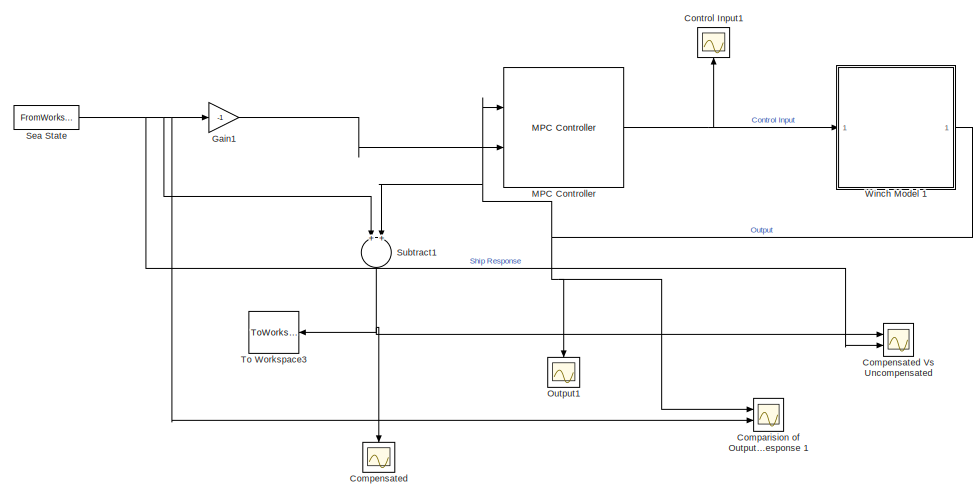
[diagram: root canvas - part 1/5, top right region]
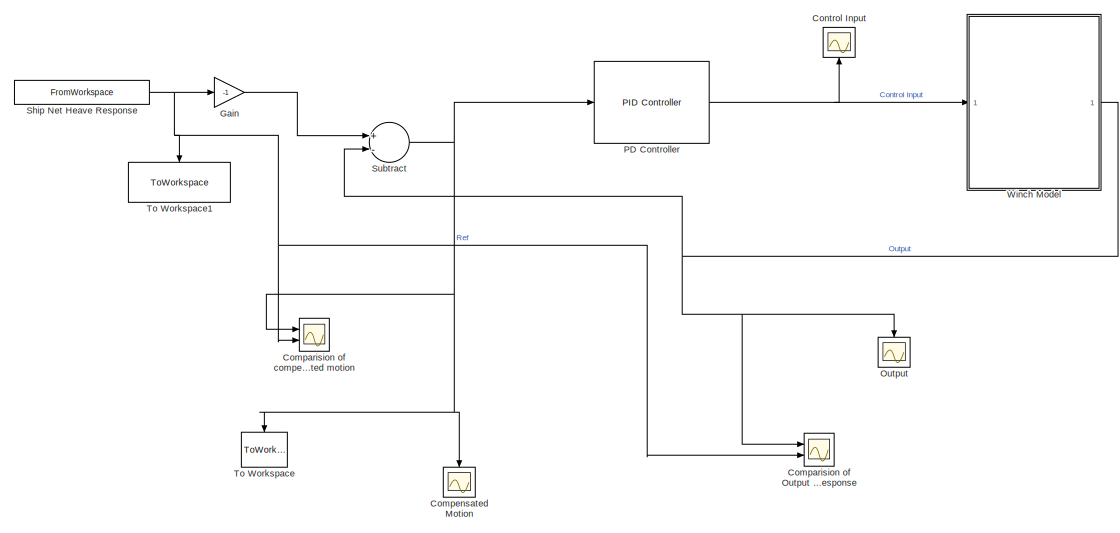
[diagram: root canvas - part 2/5, top left region]
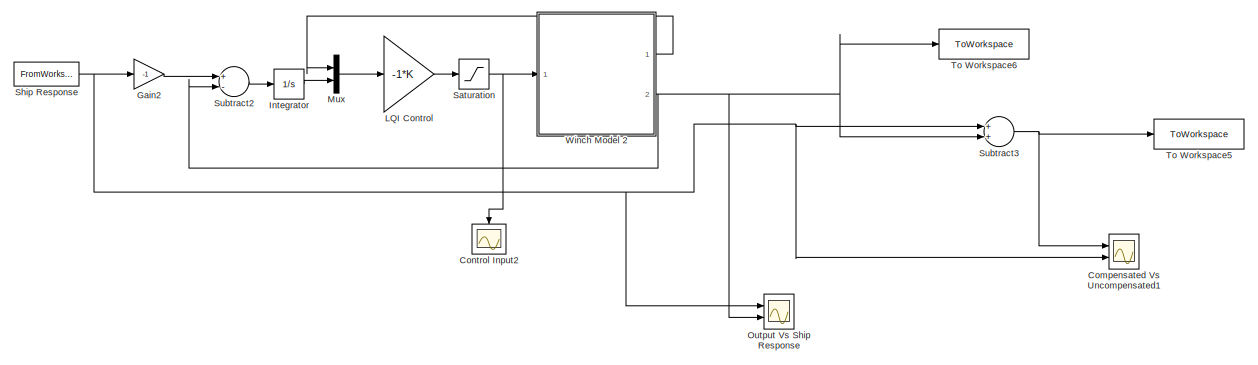
[diagram: root canvas - part 3/5, middle left region]
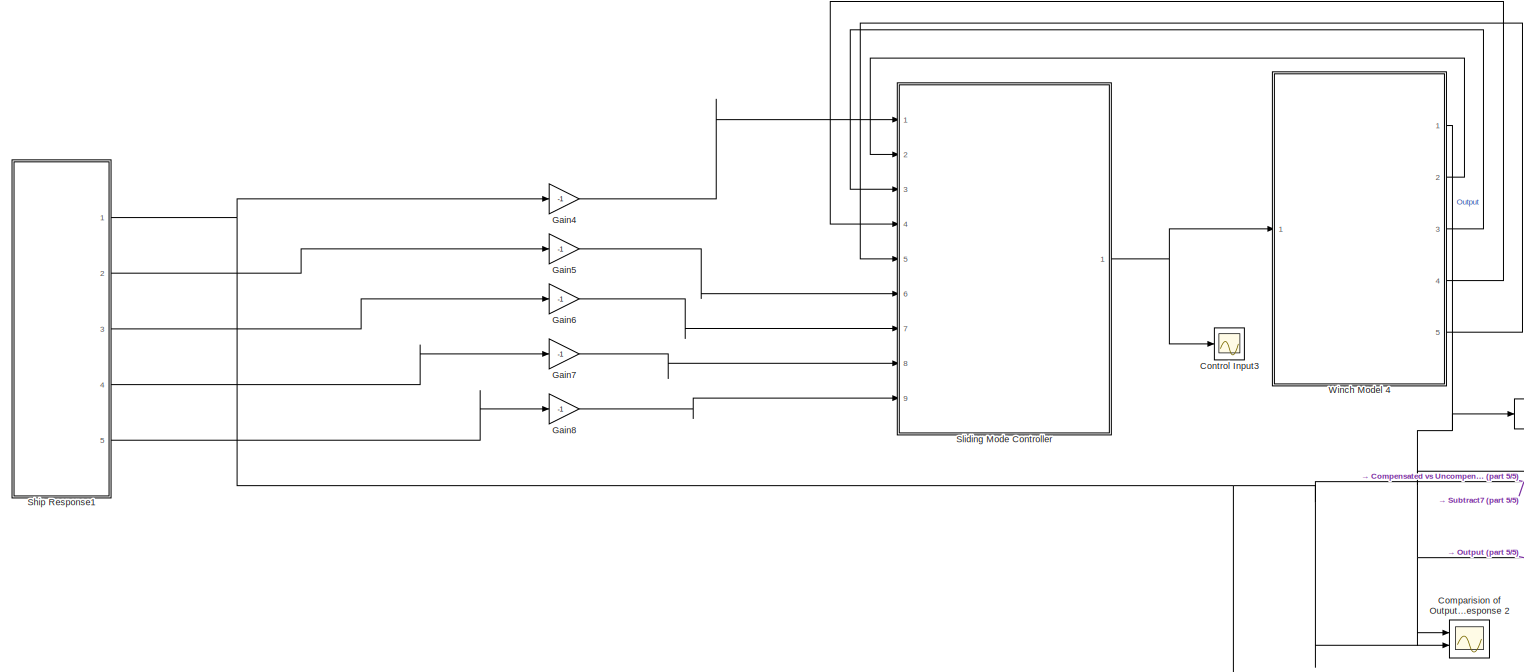
[diagram: root canvas - part 4/5, bottom left region]
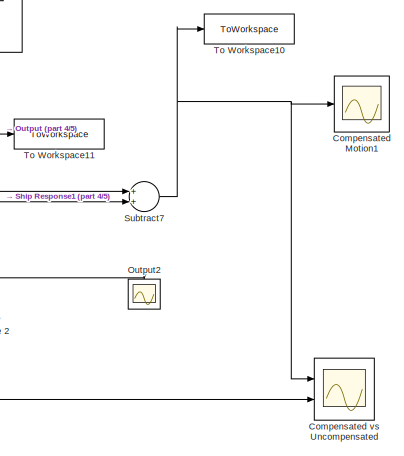
[diagram: root canvas - part 5/5, bottom right region]
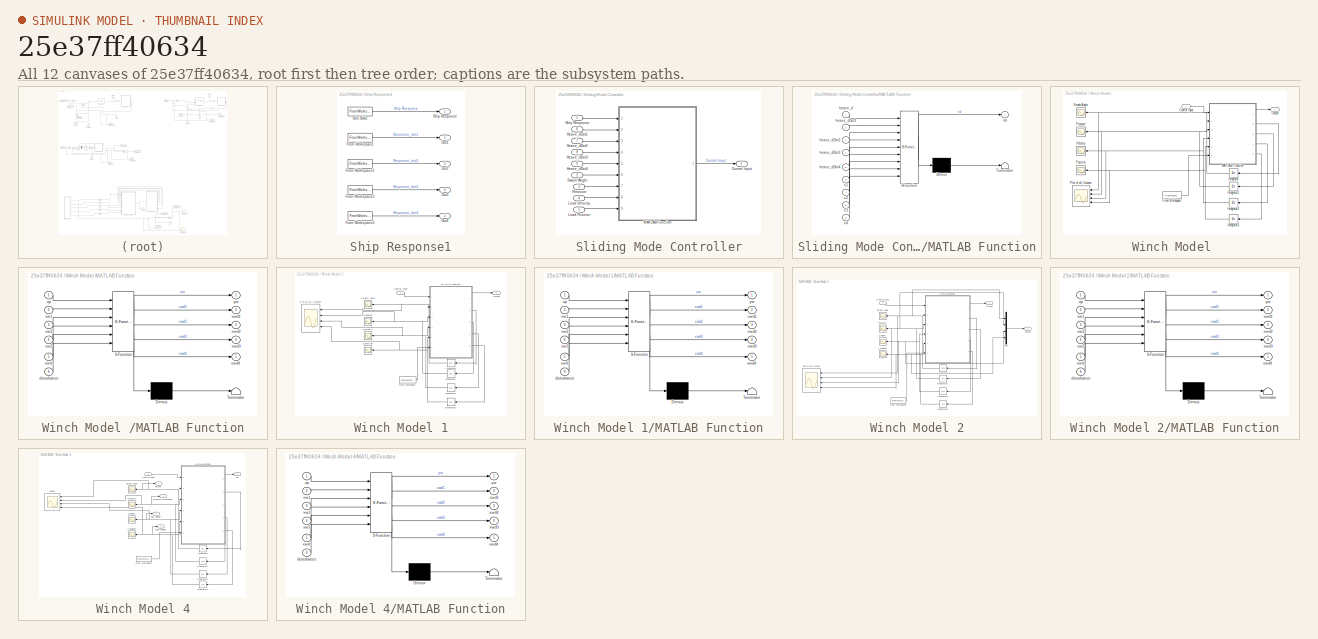
[diagram: thumbnail index - all 12 canvases of the model, root first then tree order]
MODEL slx_25e37ff40634
KIND model
CONFIG AbsTol = auto
CONFIG FixedStep = auto
CONFIG MaxStep = auto
CONFIG MinStep = auto
CONFIG RelTol = 1e-3
CONFIG SampleTimeConstraint = Unconstrained
CONFIG Solver = VariableStepAuto
CONFIG SolverMode = SingleTasking
CONFIG SolverName = VariableStepAuto
CONFIG StartTime = 0.0
CONFIG StopTime = 500
BLOCK [Scope] Comparision of Output and Ship Response 
  Floating = off
  NumInputPorts = 2
  Ports = [2]
  ScopeSpecificationString = Simulink.scopes.TimeScopeBlockCfg('CurrentConfiguration', extmgr.ConfigurationSet(extmgr.Configuration('Core','General UI',true,'FigureColor',[1 1 1]),extmgr.Configuration('Core','Source UI',true),extmgr.Configuration('Sources','WiredSimulink',true,'DataLoggingVariableName','ScopeData1'),extmgr.Configuration('Visuals','Time Domain',true,'SerializedDisplays',{struct('MinYLimReal','-2.31661','MaxYLi...<+1690ch>
BLOCK [Scope] Comparision of Output and Ship Response 1
  Floating = off
  NumInputPorts = 2
  Ports = [2]
  ScopeSpecificationString = Simulink.scopes.TimeScopeBlockCfg('CurrentConfiguration', extmgr.ConfigurationSet(extmgr.Configuration('Core','General UI',true,'FigureColor',[1 1 1]),extmgr.Configuration('Core','Source UI',true),extmgr.Configuration('Sources','WiredSimulink',true,'DataLoggingVariableName','ScopeData2'),extmgr.Configuration('Visuals','Time Domain',true,'SerializedDisplays',{struct('MinYLimReal','-2.42221','MaxYLi...<+1700ch>
BLOCK [Scope] Comparision of Output and Ship Response 2
  Floating = off
  NumInputPorts = 2
  Ports = [2]
  ScopeSpecificationString = Simulink.scopes.TimeScopeBlockCfg('CurrentConfiguration', extmgr.ConfigurationSet(extmgr.Configuration('Core','General UI',true,'FigureColor',[0 0 0]),extmgr.Configuration('Core','Source UI',true),extmgr.Configuration('Sources','WiredSimulink',true,'DataLoggingVariableName','ScopeData3'),extmgr.Configuration('Visuals','Time Domain',true,'SerializedDisplays',{struct('MinYLimReal','-3.25017','MaxYLi...<+1442ch>
BLOCK [Scope] Comparision of compensated and uncompensated motion
  Floating = off
  NumInputPorts = 2
  Ports = [2]
  ScopeSpecificationString = Simulink.scopes.TimeScopeBlockCfg('CurrentConfiguration', extmgr.ConfigurationSet(extmgr.Configuration('Core','General UI',true,'FigureColor',[1 1 1]),extmgr.Configuration('Core','Source UI',true),extmgr.Configuration('Sources','WiredSimulink',true,'DataLoggingVariableName','ScopeData4'),extmgr.Configuration('Visuals','Time Domain',true,'SerializedDisplays',{struct('MinYLimReal','-0.07424','MaxYLi...<+1643ch>
BLOCK [Scope] Compensated
  Floating = off
  NumInputPorts = 1
  Ports = [1]
  ScopeSpecificationString = Simulink.scopes.TimeScopeBlockCfg('CurrentConfiguration', extmgr.ConfigurationSet(extmgr.Configuration('Core','General UI',true,'FigureColor',[1 1 1]),extmgr.Configuration('Core','Source UI',true),extmgr.Configuration('Sources','WiredSimulink',true,'DataLoggingVariableName','ScopeData5'),extmgr.Configuration('Visuals','Time Domain',true,'SerializedDisplays',{struct('MinYLimReal','-1.35627','MaxYLi...<+1596ch>
BLOCK [Scope] Compensated Motion
  Floating = off
  NumInputPorts = 1
  Ports = [1]
  ScopeSpecificationString = Simulink.scopes.TimeScopeBlockCfg('CurrentConfiguration', extmgr.ConfigurationSet(extmgr.Configuration('Core','General UI',true,'FigureColor',[1 1 1]),extmgr.Configuration('Core','Source UI',true),extmgr.Configuration('Sources','WiredSimulink',true,'DataLoggingVariableName','ScopeData6'),extmgr.Configuration('Visuals','Time Domain',true,'SerializedDisplays',{struct('MinYLimReal','-0.12572','MaxYLi...<+1554ch>
BLOCK [Scope] Compensated Motion1
  Floating = off
  NumInputPorts = 1
  Ports = [1]
  ScopeSpecificationString = Simulink.scopes.TimeScopeBlockCfg('CurrentConfiguration', extmgr.ConfigurationSet(extmgr.Configuration('Core','General UI',true),extmgr.Configuration('Core','Source UI',true),extmgr.Configuration('Sources','WiredSimulink',true,'DataLoggingVariableName','ScopeData7'),extmgr.Configuration('Visuals','Time Domain',true,'SerializedDisplays',{struct('MinYLimReal','-0.11196','MaxYLimReal','0.0137','YLabe...<+1393ch>
BLOCK [Scope] Compensated Vs Uncompensated
  Floating = off
  NumInputPorts = 2
  Ports = [2]
  ScopeSpecificationString = Simulink.scopes.TimeScopeBlockCfg('CurrentConfiguration', extmgr.ConfigurationSet(extmgr.Configuration('Core','General UI',true),extmgr.Configuration('Core','Source UI',true),extmgr.Configuration('Sources','WiredSimulink',true,'DataLoggingVariableName','ScopeData8'),extmgr.Configuration('Visuals','Time Domain',true,'SerializedDisplays',{struct('MinYLimReal','-2.6785','MaxYLimReal','2.74564','YLabe...<+1431ch>
BLOCK [Scope] Compensated Vs Uncompensated1
  Floating = off
  NumInputPorts = 2
  Ports = [2]
  ScopeSpecificationString = Simulink.scopes.TimeScopeBlockCfg('CurrentConfiguration', extmgr.ConfigurationSet(extmgr.Configuration('Core','General UI',true),extmgr.Configuration('Core','Source UI',true),extmgr.Configuration('Sources','WiredSimulink',true,'DataLoggingVariableName','ScopeData9'),extmgr.Configuration('Visuals','Time Domain',true,'SerializedDisplays',{struct('MinYLimReal','-2.67788','MaxYLimReal','2.74559','YLab...<+1411ch>
BLOCK [Scope] Compensated vs Uncompensated 
  Floating = off
  NumInputPorts = 2
  Ports = [2]
  ScopeSpecificationString = Simulink.scopes.TimeScopeBlockCfg('CurrentConfiguration', extmgr.ConfigurationSet(extmgr.Configuration('Core','General UI',true),extmgr.Configuration('Core','Source UI',true),extmgr.Configuration('Sources','WiredSimulink',true,'DataLoggingVariableName','ScopeData10'),extmgr.Configuration('Visuals','Time Domain',true,'SerializedDisplays',{struct('MinYLimReal','-2.67855','MaxYLimReal','2.74574','YLa...<+1425ch>
BLOCK [Scope] Control Input
  Floating = off
  NumInputPorts = 1
  Ports = [1]
  ScopeSpecificationString = Simulink.scopes.TimeScopeBlockCfg('CurrentConfiguration', extmgr.ConfigurationSet(extmgr.Configuration('Core','General UI',true,'FigureColor',[1 1 1]),extmgr.Configuration('Core','Source UI',true),extmgr.Configuration('Sources','WiredSimulink',true,'DataLoggingVariableName','ScopeData11'),extmgr.Configuration('Visuals','Time Domain',true,'SerializedDisplays',{struct('MinYLimReal','-45.84513','MaxY...<+1612ch>
BLOCK [Scope] Control Input1
  Floating = off
  NumInputPorts = 1
  Ports = [1]
  ScopeSpecificationString = Simulink.scopes.TimeScopeBlockCfg('CurrentConfiguration', extmgr.ConfigurationSet(extmgr.Configuration('Core','General UI',true,'FigureColor',[1 1 1]),extmgr.Configuration('Core','Source UI',true),extmgr.Configuration('Sources','WiredSimulink',true,'DataLoggingVariableName','ScopeData12'),extmgr.Configuration('Visuals','Time Domain',true,'SerializedDisplays',{struct('MinYLimReal','-100','MaxYLimRe...<+1569ch>
BLOCK [Scope] Control Input2
  Floating = off
  NumInputPorts = 1
  Ports = [1]
  ScopeSpecificationString = Simulink.scopes.TimeScopeBlockCfg('CurrentConfiguration', extmgr.ConfigurationSet(extmgr.Configuration('Core','General UI',true),extmgr.Configuration('Core','Source UI',true),extmgr.Configuration('Sources','WiredSimulink',true,'DataLoggingVariableName','ScopeData13'),extmgr.Configuration('Visuals','Time Domain',true,'SerializedDisplays',{struct('MinYLimReal','-219.84521','MaxYLimReal','340.60567',...<+1412ch>
BLOCK [Scope] Control Input3
  Floating = off
  NumInputPorts = 1
  Ports = [1]
  ScopeSpecificationString = Simulink.scopes.TimeScopeBlockCfg('CurrentConfiguration', extmgr.ConfigurationSet(extmgr.Configuration('Core','General UI',true),extmgr.Configuration('Core','Source UI',true),extmgr.Configuration('Sources','WiredSimulink',true,'DataLoggingVariableName','ScopeData14'),extmgr.Configuration('Visuals','Time Domain',true,'SerializedDisplays',{struct('MinYLimReal','-250','MaxYLimReal','250','YLabelReal'...<+1422ch>
BLOCK [Gain] Gain
  Gain = -1
  OutDataTypeStr = Inherit: Inherit via internal rule
  ParamDataTypeStr = Inherit: Inherit via internal rule
  SaturateOnIntegerOverflow = off
BLOCK [Gain] Gain1
  Gain = -1
  OutDataTypeStr = Inherit: Inherit via internal rule
  ParamDataTypeStr = Inherit: Inherit via internal rule
  SaturateOnIntegerOverflow = off
BLOCK [Gain] Gain2
  Gain = -1
  OutDataTypeStr = Inherit: Inherit via internal rule
  ParamDataTypeStr = Inherit: Inherit via internal rule
  SaturateOnIntegerOverflow = off
BLOCK [Gain] Gain4
  Gain = -1
  OutDataTypeStr = Inherit: Inherit via internal rule
  ParamDataTypeStr = Inherit: Inherit via internal rule
  SaturateOnIntegerOverflow = off
BLOCK [Gain] Gain5
  Gain = -1
  OutDataTypeStr = Inherit: Inherit via internal rule
  ParamDataTypeStr = Inherit: Inherit via internal rule
  SaturateOnIntegerOverflow = off
BLOCK [Gain] Gain6
  Gain = -1
  OutDataTypeStr = Inherit: Inherit via internal rule
  ParamDataTypeStr = Inherit: Inherit via internal rule
  SaturateOnIntegerOverflow = off
BLOCK [Gain] Gain7
  Gain = -1
  OutDataTypeStr = Inherit: Inherit via internal rule
  ParamDataTypeStr = Inherit: Inherit via internal rule
  SaturateOnIntegerOverflow = off
BLOCK [Gain] Gain8
  Gain = -1
  OutDataTypeStr = Inherit: Inherit via internal rule
  ParamDataTypeStr = Inherit: Inherit via internal rule
  SaturateOnIntegerOverflow = off
BLOCK [Integrator] Integrator
  Ports = [1, 1]
BLOCK [Gain] LQI Control
  Gain = -1*K
  Multiplication = Matrix(K*u) (u vector)
  OutDataTypeStr = Inherit: Inherit via internal rule
  ParamDataTypeStr = Inherit: Inherit via internal rule
  SaturateOnIntegerOverflow = off
BLOCK [Reference] MPC Controller  REF=mpclib/MPC Controller  (lib defined in mdl_ae329e0e0455)
  Ports = [2, 1]
  SCDEnableBlockLinearizationSpecification = on
  SourceBlock = mpclib/MPC Controller
  SourceType = MPC
BLOCK [Mux] Mux
  DisplayOption = bar
  Inputs = 2
  Ports = [2, 1]
BLOCK [Scope] Output
  Floating = off
  NumInputPorts = 1
  Ports = [1]
  ScopeSpecificationString = Simulink.scopes.TimeScopeBlockCfg('CurrentConfiguration', extmgr.ConfigurationSet(extmgr.Configuration('Core','General UI',true),extmgr.Configuration('Core','Source UI',true),extmgr.Configuration('Sources','WiredSimulink',true,'DataLoggingVariableName','ScopeData15'),extmgr.Configuration('Visuals','Time Domain',true,'SerializedDisplays',{struct('MinYLimReal','-2.56741','MaxYLimReal','2.65555','YLa...<+1366ch>
BLOCK [Scope] Output Vs Ship Response
  Floating = off
  NumInputPorts = 2
  Ports = [2]
  ScopeSpecificationString = Simulink.scopes.TimeScopeBlockCfg('CurrentConfiguration', extmgr.ConfigurationSet(extmgr.Configuration('Core','General UI',true),extmgr.Configuration('Core','Source UI',true),extmgr.Configuration('Sources','WiredSimulink',true,'DataLoggingVariableName','ScopeData16'),extmgr.Configuration('Visuals','Time Domain',true,'SerializedDisplays',{struct('MinYLimReal','-2.42222','MaxYLimReal','2.42226','YLa...<+1467ch>
BLOCK [Scope] Output1
  Floating = off
  NumInputPorts = 1
  Ports = [1]
  ScopeSpecificationString = Simulink.scopes.TimeScopeBlockCfg('CurrentConfiguration', extmgr.ConfigurationSet(extmgr.Configuration('Core','General UI',true),extmgr.Configuration('Core','Source UI',true),extmgr.Configuration('Sources','WiredSimulink',true,'DataLoggingVariableName','ScopeData17'),extmgr.Configuration('Visuals','Time Domain',true,'SerializedDisplays',{struct('MinYLimReal','-0.22767','MaxYLimReal','0.26687','YLa...<+1366ch>
BLOCK [Scope] Output2
  Floating = off
  NumInputPorts = 1
  Ports = [1]
  ScopeSpecificationString = Simulink.scopes.TimeScopeBlockCfg('CurrentConfiguration', extmgr.ConfigurationSet(extmgr.Configuration('Core','General UI',true),extmgr.Configuration('Core','Source UI',true),extmgr.Configuration('Sources','WiredSimulink',true,'DataLoggingVariableName','ScopeData18'),extmgr.Configuration('Visuals','Time Domain',true,'SerializedDisplays',{struct('MinYLimReal','-1.32195','MaxYLimReal','0.93934','YLa...<+1366ch>
BLOCK [Reference] PD Controller   REF=simulink/Continuous/PID Controller
  Ports = [1, 1]
  SourceBlock = simulink/Continuous/PID Controller
  SourceType = PID 1dof
BLOCK [Saturate] Saturation
  InputPortMap = u0
  LowerLimit = -200
  Ports = [1, 1]
  UpperLimit = 200
BLOCK [FromWorkspace] Sea State
  SampleTime = 0
  VariableName = response1
  ZeroCross = on
BLOCK [FromWorkspace] Ship Net Heave Response
  SampleTime = 0
  VariableName = response1
  ZeroCross = on
BLOCK [FromWorkspace] Ship Response
  SampleTime = 0
  VariableName = response1
  ZeroCross = on
BLOCK [SubSystem] Ship Response1
  Ports = [0, 5]
  RequestExecContextInheritance = off
BLOCK [Outport] Ship Response1/Dot1
  IconDisplay = Port number
  Port = 2
BLOCK [Outport] Ship Response1/Dot2
  IconDisplay = Port number
  Port = 3
BLOCK [Outport] Ship Response1/Dot3
  IconDisplay = Port number
  Port = 4
BLOCK [Outport] Ship Response1/Dot4
  IconDisplay = Port number
  Port = 5
BLOCK [FromWorkspace] Ship Response1/From Workspace
  SampleTime = 0
  VariableName = response_dot1
  ZeroCross = on
BLOCK [FromWorkspace] Ship Response1/From Workspace1
  SampleTime = 0
  VariableName = response_dot2
  ZeroCross = on
BLOCK [FromWorkspace] Ship Response1/From Workspace2
  SampleTime = 0
  VariableName = response_dot3
  ZeroCross = on
BLOCK [FromWorkspace] Ship Response1/From Workspace3
  SampleTime = 0
  VariableName = response_dot4
  ZeroCross = on
BLOCK [FromWorkspace] Ship Response1/Sea State 
  SampleTime = 0
  VariableName = response1
  ZeroCross = on
BLOCK [Outport] Ship Response1/Ship Response
  IconDisplay = Port number
BLOCK [SubSystem] Sliding Mode Controller
  Ports = [9, 1]
  RequestExecContextInheritance = off
BLOCK [Outport] Sliding Mode Controller/Control Input
  IconDisplay = Port number
BLOCK [Inport] Sliding Mode Controller/Heave_dDot1 
  IconDisplay = Port number
  Port = 6
BLOCK [Inport] Sliding Mode Controller/Heave_dDot2
  IconDisplay = Port number
  Port = 7
BLOCK [Inport] Sliding Mode Controller/Heave_dDot3
  IconDisplay = Port number
  Port = 8
BLOCK [Inport] Sliding Mode Controller/Heave_dDot4
  IconDisplay = Port number
  Port = 9
BLOCK [Inport] Sliding Mode Controller/Load Position
  IconDisplay = Port number
  Port = 5
BLOCK [Inport] Sliding Mode Controller/Load Velocity
  IconDisplay = Port number
  Port = 4
BLOCK [SubSystem] Sliding Mode Controller/MATLAB Function
  ErrorFcn = Stateflow.Translate.translate
  PermitHierarchicalResolution = ExplicitOnly
  Ports = [9, 1]
  RequestExecContextInheritance = off
  SFBlockType = MATLAB Function
  TreatAsAtomicUnit = on
BLOCK [Demux] Sliding Mode Controller/MATLAB Function/ Demux 
  Outputs = 1
  Ports = [1, 1]
BLOCK [S-Function] Sliding Mode Controller/MATLAB Function/ SFunction 
  EnableBusSupport = on
  FunctionName = sf_sfun
  PortCounts = [9 2]
  Ports = [9, 2]
  SFunctionDeploymentMode = off
  Tag = Stateflow S-Function Winch_All_Controllers_with_d 5
BLOCK [Terminator] Sliding Mode Controller/MATLAB Function/ Terminator 
BLOCK [Inport] Sliding Mode Controller/MATLAB Function/heave_d
  IconDisplay = Port number
BLOCK [Inport] Sliding Mode Controller/MATLAB Function/heave_dDot1
  IconDisplay = Port number
  Port = 2
BLOCK [Inport] Sliding Mode Controller/MATLAB Function/heave_dDot2
  IconDisplay = Port number
  Port = 3
BLOCK [Inport] Sliding Mode Controller/MATLAB Function/heave_dDot3
  IconDisplay = Port number
  Port = 4
BLOCK [Inport] Sliding Mode Controller/MATLAB Function/heave_dDot4
  IconDisplay = Port number
  Port = 5
BLOCK [Outport] Sliding Mode Controller/MATLAB Function/up
  IconDisplay = Port number
BLOCK [Inport] Sliding Mode Controller/MATLAB Function/x1
  IconDisplay = Port number
  Port = 6
BLOCK [Inport] Sliding Mode Controller/MATLAB Function/x2
  IconDisplay = Port number
  Port = 7
BLOCK [Inport] Sliding Mode Controller/MATLAB Function/x3
  IconDisplay = Port number
  Port = 8
BLOCK [Inport] Sliding Mode Controller/MATLAB Function/x4
  IconDisplay = Port number
  Port = 9
BLOCK [Inport] Sliding Mode Controller/Pressure
  IconDisplay = Port number
  Port = 3
BLOCK [Inport] Sliding Mode Controller/Ship Response
  IconDisplay = Port number
BLOCK [Inport] Sliding Mode Controller/Swash Angle
  IconDisplay = Port number
  Port = 2
BLOCK [Sum] Subtract
  InputSameDT = off
  Inputs = +-
  OutDataTypeStr = Inherit: Inherit via internal rule
  Ports = [2, 1]
  SaturateOnIntegerOverflow = off
BLOCK [Sum] Subtract1
  InputSameDT = off
  OutDataTypeStr = Inherit: Inherit via internal rule
  Ports = [2, 1]
  SaturateOnIntegerOverflow = off
BLOCK [Sum] Subtract2
  InputSameDT = off
  Inputs = +-
  OutDataTypeStr = Inherit: Inherit via internal rule
  Ports = [2, 1]
  SaturateOnIntegerOverflow = off
BLOCK [Sum] Subtract3
  InputSameDT = off
  OutDataTypeStr = Inherit: Inherit via internal rule
  Ports = [2, 1]
  SaturateOnIntegerOverflow = off
BLOCK [Sum] Subtract7
  InputSameDT = off
  OutDataTypeStr = Inherit: Inherit via internal rule
  Ports = [2, 1]
  SaturateOnIntegerOverflow = off
BLOCK [ToWorkspace] To Workspace
  FixptAsFi = on
  MaxDataPoints = inf
  Ports = [1]
  SampleTime = -1
  VariableName = error_pd
BLOCK [ToWorkspace] To Workspace1
  FixptAsFi = on
  MaxDataPoints = inf
  Ports = [1]
  SampleTime = -1
  VariableName = shipresponse
BLOCK [ToWorkspace] To Workspace10
  FixptAsFi = on
  MaxDataPoints = inf
  Ports = [1]
  SampleTime = -1
  VariableName = error_smc
BLOCK [ToWorkspace] To Workspace11
  FixptAsFi = on
  MaxDataPoints = inf
  Ports = [1]
  SampleTime = -1
  VariableName = output1
BLOCK [ToWorkspace] To Workspace3
  MaxDataPoints = inf
  Ports = [1]
  SampleTime = -1
  Save2DSignal = 2-D array (concatenate along first dimension)
  VariableName = error_mpc
BLOCK [ToWorkspace] To Workspace5
  FixptAsFi = on
  MaxDataPoints = inf
  Ports = [1]
  SampleTime = -1
  VariableName = error_lqi
BLOCK [ToWorkspace] To Workspace6
  FixptAsFi = on
  MaxDataPoints = inf
  Ports = [1]
  SampleTime = -1
  VariableName = output
BLOCK [SubSystem] Winch Model 
  Ports = [1, 1]
  RequestExecContextInheritance = off
BLOCK [Inport] Winch Model /Control Input
  IconDisplay = Port number
BLOCK [FromWorkspace] Winch Model /From Workspace
  SampleTime = 0
  VariableName = disturbance1
  ZeroCross = on
BLOCK [Integrator] Winch Model /Integrator
  ContinuousStateAttributes = 'Swash'
  InitialCondition = 0.4
  LimitOutput = on
  LowerSaturationLimit = -1
  Ports = [1, 1]
  UpperSaturationLimit = 1
BLOCK [Integrator] Winch Model /Integrator1
  ContinuousStateAttributes = 'Pressure'
  InitialCondition = 188e5
  LowerSaturationLimit = -4e7
  Ports = [1, 1]
  UpperSaturationLimit = 4e7
BLOCK [Integrator] Winch Model /Integrator2
  ContinuousStateAttributes = 'Velocity'
  Ports = [1, 1]
BLOCK [Integrator] Winch Model /Integrator3
  ContinuousStateAttributes = 'Position'
  Ports = [1, 1]
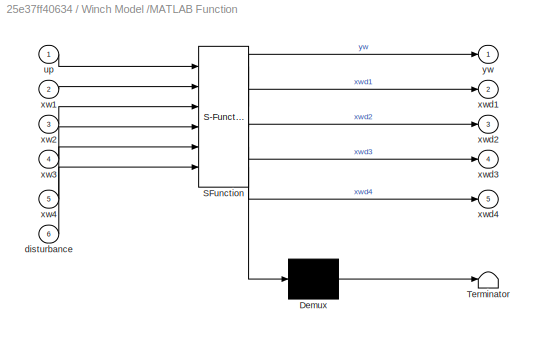
BLOCK [SubSystem] Winch Model /MATLAB Function
  ErrorFcn = Stateflow.Translate.translate
  PermitHierarchicalResolution = ExplicitOnly
  Ports = [6, 5]
  RequestExecContextInheritance = off
  SFBlockType = MATLAB Function
  TreatAsAtomicUnit = on
BLOCK [Demux] Winch Model /MATLAB Function/ Demux 
  Outputs = 1
  Ports = [1, 1]
BLOCK [S-Function] Winch Model /MATLAB Function/ SFunction 
  EnableBusSupport = on
  FunctionName = sf_sfun
  PortCounts = [6 6]
  Ports = [6, 6]
  SFunctionDeploymentMode = off
  Tag = Stateflow S-Function Winch_All_Controllers_with_d 2
BLOCK [Terminator] Winch Model /MATLAB Function/ Terminator 
BLOCK [Inport] Winch Model /MATLAB Function/disturbance
  IconDisplay = Port number
  Port = 6
BLOCK [Inport] Winch Model /MATLAB Function/up
  IconDisplay = Port number
BLOCK [Inport] Winch Model /MATLAB Function/xw1
  IconDisplay = Port number
  Port = 2
BLOCK [Inport] Winch Model /MATLAB Function/xw2
  IconDisplay = Port number
  Port = 3
BLOCK [Inport] Winch Model /MATLAB Function/xw3
  IconDisplay = Port number
  Port = 4
BLOCK [Inport] Winch Model /MATLAB Function/xw4
  IconDisplay = Port number
  Port = 5
BLOCK [Outport] Winch Model /MATLAB Function/xwd1
  IconDisplay = Port number
  Port = 2
BLOCK [Outport] Winch Model /MATLAB Function/xwd2
  IconDisplay = Port number
  Port = 3
BLOCK [Outport] Winch Model /MATLAB Function/xwd3
  IconDisplay = Port number
  Port = 4
BLOCK [Outport] Winch Model /MATLAB Function/xwd4
  IconDisplay = Port number
  Port = 5
BLOCK [Outport] Winch Model /MATLAB Function/yw
  IconDisplay = Port number
BLOCK [Outport] Winch Model /Output 
  IconDisplay = Port number
BLOCK [Scope] Winch Model /Plot of all 4 states
  Floating = off
  NumInputPorts = 4
  Ports = [4]
  ScopeSpecificationString = Simulink.scopes.TimeScopeBlockCfg('CurrentConfiguration', extmgr.ConfigurationSet(extmgr.Configuration('Core','General UI',true,'FigureColor',[1 1 1]),extmgr.Configuration('Core','Source UI',true),extmgr.Configuration('Sources','WiredSimulink',true,'DataLoggingVariableName','ScopeData1'),extmgr.Configuration('Visuals','Time Domain',true,'SerializedDisplays',{struct('MinYLimReal','-1.13321','MaxYLi...<+4092ch>
BLOCK [Scope] Winch Model /Position
  Floating = off
  NumInputPorts = 1
  Ports = [1]
  ScopeSpecificationString = Simulink.scopes.TimeScopeBlockCfg('CurrentConfiguration', extmgr.ConfigurationSet(extmgr.Configuration('Core','General UI',true),extmgr.Configuration('Core','Source UI',true),extmgr.Configuration('Sources','WiredSimulink',true,'DataLoggingVariableName','ScopeData4'),extmgr.Configuration('Visuals','Time Domain',true,'SerializedDisplays',{struct('MinYLimReal','-0.33676','MaxYLimReal','0.36336','YLab...<+1370ch>
BLOCK [Scope] Winch Model /Pressure
  Floating = off
  NumInputPorts = 1
  Ports = [1]
  ScopeSpecificationString = Simulink.scopes.TimeScopeBlockCfg('CurrentConfiguration', extmgr.ConfigurationSet(extmgr.Configuration('Core','General UI',true),extmgr.Configuration('Core','Source UI',true),extmgr.Configuration('Sources','WiredSimulink',true,'DataLoggingVariableName','ScopeData2'),extmgr.Configuration('Visuals','Time Domain',true,'SerializedDisplays',{struct('MinYLimReal','-564507160.37466','MaxYLimReal','256262...<+1432ch>
BLOCK [Scope] Winch Model /Swash Angle
  Floating = off
  NumInputPorts = 1
  Ports = [1]
  ScopeSpecificationString = Simulink.scopes.TimeScopeBlockCfg('CurrentConfiguration', extmgr.ConfigurationSet(extmgr.Configuration('Core','General UI',true),extmgr.Configuration('Core','Source UI',true),extmgr.Configuration('Sources','WiredSimulink',true,'DataLoggingVariableName','ScopeData1'),extmgr.Configuration('Visuals','Time Domain',true,'SerializedDisplays',{struct('MinYLimReal','-2','MaxYLimReal','2','YLabelReal','','...<+1389ch>
BLOCK [Scope] Winch Model /Velocity
  Floating = off
  NumInputPorts = 1
  Ports = [1]
  ScopeSpecificationString = Simulink.scopes.TimeScopeBlockCfg('CurrentConfiguration', extmgr.ConfigurationSet(extmgr.Configuration('Core','General UI',true),extmgr.Configuration('Core','Source UI',true),extmgr.Configuration('Sources','WiredSimulink',true,'DataLoggingVariableName','ScopeData3'),extmgr.Configuration('Visuals','Time Domain',true,'SerializedDisplays',{struct('MinYLimReal','-0.16168','MaxYLimReal','0.17119','YLab...<+1370ch>
BLOCK [SubSystem] Winch Model 1
  Ports = [1, 1]
  RequestExecContextInheritance = off
BLOCK [Inport] Winch Model 1/Control Input 
  IconDisplay = Port number
BLOCK [FromWorkspace] Winch Model 1/From Workspace
  SampleTime = 0
  VariableName = disturbance1
  ZeroCross = on
BLOCK [Integrator] Winch Model 1/Integrator
  InitialCondition = 0.3
  LimitOutput = on
  LowerSaturationLimit = -1
  Ports = [1, 1]
  UpperSaturationLimit = 1
BLOCK [Integrator] Winch Model 1/Integrator1
  InitialCondition = 188e5
  LowerSaturationLimit = -5e7
  Ports = [1, 1]
  UpperSaturationLimit = 5e7
BLOCK [Integrator] Winch Model 1/Integrator2
  Ports = [1, 1]
BLOCK [Integrator] Winch Model 1/Integrator3
  Ports = [1, 1]
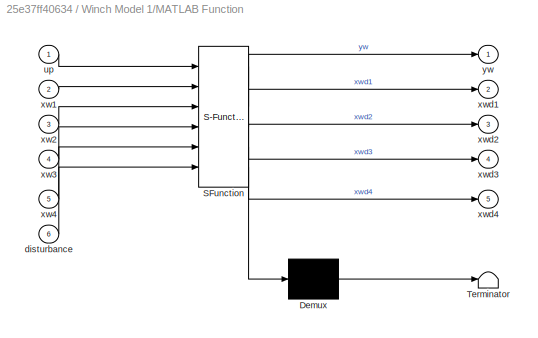
BLOCK [SubSystem] Winch Model 1/MATLAB Function
  ErrorFcn = Stateflow.Translate.translate
  PermitHierarchicalResolution = ExplicitOnly
  Ports = [6, 5]
  RequestExecContextInheritance = off
  SFBlockType = MATLAB Function
  TreatAsAtomicUnit = on
BLOCK [Demux] Winch Model 1/MATLAB Function/ Demux 
  Outputs = 1
  Ports = [1, 1]
BLOCK [S-Function] Winch Model 1/MATLAB Function/ SFunction 
  EnableBusSupport = on
  FunctionName = sf_sfun
  PortCounts = [6 6]
  Ports = [6, 6]
  SFunctionDeploymentMode = off
  Tag = Stateflow S-Function Winch_All_Controllers_with_d 1
BLOCK [Terminator] Winch Model 1/MATLAB Function/ Terminator 
BLOCK [Inport] Winch Model 1/MATLAB Function/disturbance
  IconDisplay = Port number
  Port = 6
BLOCK [Inport] Winch Model 1/MATLAB Function/up
  IconDisplay = Port number
BLOCK [Inport] Winch Model 1/MATLAB Function/xw1
  IconDisplay = Port number
  Port = 2
BLOCK [Inport] Winch Model 1/MATLAB Function/xw2
  IconDisplay = Port number
  Port = 3
BLOCK [Inport] Winch Model 1/MATLAB Function/xw3
  IconDisplay = Port number
  Port = 4
BLOCK [Inport] Winch Model 1/MATLAB Function/xw4
  IconDisplay = Port number
  Port = 5
BLOCK [Outport] Winch Model 1/MATLAB Function/xwd1
  IconDisplay = Port number
  Port = 2
BLOCK [Outport] Winch Model 1/MATLAB Function/xwd2
  IconDisplay = Port number
  Port = 3
BLOCK [Outport] Winch Model 1/MATLAB Function/xwd3
  IconDisplay = Port number
  Port = 4
BLOCK [Outport] Winch Model 1/MATLAB Function/xwd4
  IconDisplay = Port number
  Port = 5
BLOCK [Outport] Winch Model 1/MATLAB Function/yw
  IconDisplay = Port number
BLOCK [Outport] Winch Model 1/Output 
  IconDisplay = Port number
BLOCK [Scope] Winch Model 1/Plot of all 4 states
  Floating = off
  NumInputPorts = 4
  Ports = [4]
  ScopeSpecificationString = Simulink.scopes.TimeScopeBlockCfg('CurrentConfiguration', extmgr.ConfigurationSet(extmgr.Configuration('Core','General UI',true,'FigureColor',[1 1 1]),extmgr.Configuration('Core','Source UI',true),extmgr.Configuration('Sources','WiredSimulink',true,'DataLoggingVariableName','ScopeData1'),extmgr.Configuration('Visuals','Time Domain',true,'SerializedDisplays',{struct('MinYLimReal','-1.25','MaxYLimRe...<+4006ch>
BLOCK [Scope] Winch Model 1/Pressure
  Floating = off
  NumInputPorts = 1
  Ports = [1]
  ScopeSpecificationString = Simulink.scopes.TimeScopeBlockCfg('CurrentConfiguration', extmgr.ConfigurationSet(extmgr.Configuration('Core','General UI',true),extmgr.Configuration('Core','Source UI',true),extmgr.Configuration('Sources','WiredSimulink',true,'DataLoggingVariableName','ScopeData2'),extmgr.Configuration('Visuals','Time Domain',true,'SerializedDisplays',{struct('MinYLimReal','-7478403.11585','MaxYLimReal','43744702...<+1420ch>
BLOCK [Scope] Winch Model 1/Swash Angle
  Floating = off
  NumInputPorts = 1
  Ports = [1]
  ScopeSpecificationString = Simulink.scopes.TimeScopeBlockCfg('CurrentConfiguration', extmgr.ConfigurationSet(extmgr.Configuration('Core','General UI',true),extmgr.Configuration('Core','Source UI',true),extmgr.Configuration('Sources','WiredSimulink',true,'DataLoggingVariableName','ScopeData1'),extmgr.Configuration('Visuals','Time Domain',true,'SerializedDisplays',{struct('MinYLimReal','-5.9618','MaxYLimReal','6.04357','YLabe...<+1367ch>
BLOCK [Scope] Winch Model 1/Z_velocity
  Floating = off
  NumInputPorts = 1
  Ports = [1]
  ScopeSpecificationString = Simulink.scopes.TimeScopeBlockCfg('CurrentConfiguration', extmgr.ConfigurationSet(extmgr.Configuration('Core','General UI',true),extmgr.Configuration('Core','Source UI',true),extmgr.Configuration('Sources','WiredSimulink',true,'DataLoggingVariableName','ScopeData3'),extmgr.Configuration('Visuals','Time Domain',true,'SerializedDisplays',{struct('MinYLimReal','-0.16168','MaxYLimReal','0.17119','YLab...<+1370ch>
BLOCK [Scope] Winch Model 1/z_position
  Floating = off
  NumInputPorts = 1
  Ports = [1]
  ScopeSpecificationString = Simulink.scopes.TimeScopeBlockCfg('CurrentConfiguration', extmgr.ConfigurationSet(extmgr.Configuration('Core','General UI',true),extmgr.Configuration('Core','Source UI',true),extmgr.Configuration('Sources','WiredSimulink',true,'DataLoggingVariableName','ScopeData4'),extmgr.Configuration('Visuals','Time Domain',true,'SerializedDisplays',{struct('MinYLimReal','-3.81989','MaxYLimReal','3.67217','YLab...<+1370ch>
BLOCK [SubSystem] Winch Model 2
  Ports = [1, 2]
  RequestExecContextInheritance = off
BLOCK [Inport] Winch Model 2/Control Input
  IconDisplay = Port number
BLOCK [FromWorkspace] Winch Model 2/From Workspace
  SampleTime = 0
  VariableName = disturbance1
  ZeroCross = on
BLOCK [Integrator] Winch Model 2/Integrator
  InitialCondition = 0.3
  LimitOutput = on
  LowerSaturationLimit = -1
  Ports = [1, 1]
  UpperSaturationLimit = 1
BLOCK [Integrator] Winch Model 2/Integrator1
  InitialCondition = 188e5
  LowerSaturationLimit = -5e7
  Ports = [1, 1]
  UpperSaturationLimit = 5e7
BLOCK [Integrator] Winch Model 2/Integrator2
  Ports = [1, 1]
BLOCK [Integrator] Winch Model 2/Integrator3
  Ports = [1, 1]
BLOCK [SubSystem] Winch Model 2/MATLAB Function
  ErrorFcn = Stateflow.Translate.translate
  PermitHierarchicalResolution = ExplicitOnly
  Ports = [6, 5]
  RequestExecContextInheritance = off
  SFBlockType = MATLAB Function
  TreatAsAtomicUnit = on
BLOCK [Demux] Winch Model 2/MATLAB Function/ Demux 
  Outputs = 1
  Ports = [1, 1]
BLOCK [S-Function] Winch Model 2/MATLAB Function/ SFunction 
  EnableBusSupport = on
  FunctionName = sf_sfun
  PortCounts = [6 6]
  Ports = [6, 6]
  SFunctionDeploymentMode = off
  Tag = Stateflow S-Function Winch_All_Controllers_with_d 3
BLOCK [Terminator] Winch Model 2/MATLAB Function/ Terminator 
BLOCK [Inport] Winch Model 2/MATLAB Function/disturbance
  IconDisplay = Port number
  Port = 6
BLOCK [Inport] Winch Model 2/MATLAB Function/up
  IconDisplay = Port number
BLOCK [Inport] Winch Model 2/MATLAB Function/xw1
  IconDisplay = Port number
  Port = 2
BLOCK [Inport] Winch Model 2/MATLAB Function/xw2
  IconDisplay = Port number
  Port = 3
BLOCK [Inport] Winch Model 2/MATLAB Function/xw3
  IconDisplay = Port number
  Port = 4
BLOCK [Inport] Winch Model 2/MATLAB Function/xw4
  IconDisplay = Port number
  Port = 5
BLOCK [Outport] Winch Model 2/MATLAB Function/xwd1
  IconDisplay = Port number
  Port = 2
BLOCK [Outport] Winch Model 2/MATLAB Function/xwd2
  IconDisplay = Port number
  Port = 3
BLOCK [Outport] Winch Model 2/MATLAB Function/xwd3
  IconDisplay = Port number
  Port = 4
BLOCK [Outport] Winch Model 2/MATLAB Function/xwd4
  IconDisplay = Port number
  Port = 5
BLOCK [Outport] Winch Model 2/MATLAB Function/yw
  IconDisplay = Port number
BLOCK [Mux] Winch Model 2/Mux
  DisplayOption = bar
  Ports = [4, 1]
BLOCK [Outport] Winch Model 2/Output 
  IconDisplay = Port number
  Port = 2
BLOCK [Scope] Winch Model 2/Plot of all 4 states
  Floating = off
  NumInputPorts = 4
  Ports = [4]
  ScopeSpecificationString = Simulink.scopes.TimeScopeBlockCfg('CurrentConfiguration', extmgr.ConfigurationSet(extmgr.Configuration('Core','General UI',true,'FigureColor',[1 1 1]),extmgr.Configuration('Core','Source UI',true),extmgr.Configuration('Sources','WiredSimulink',true,'DataLoggingVariableName','ScopeData1'),extmgr.Configuration('Visuals','Time Domain',true,'SerializedDisplays',{struct('MinYLimReal','-0.59706','MaxYLi...<+4015ch>
BLOCK [Scope] Winch Model 2/Pressure
  Floating = off
  NumInputPorts = 1
  Ports = [1]
  ScopeSpecificationString = Simulink.scopes.TimeScopeBlockCfg('CurrentConfiguration', extmgr.ConfigurationSet(extmgr.Configuration('Core','General UI',true),extmgr.Configuration('Core','Source UI',true),extmgr.Configuration('Sources','WiredSimulink',true,'DataLoggingVariableName','ScopeData2'),extmgr.Configuration('Visuals','Time Domain',true,'SerializedDisplays',{struct('MinYLimReal','-1.00000','MaxYLimReal','1.00000','YLab...<+1370ch>
BLOCK [Outport] Winch Model 2/States
  IconDisplay = Port number
BLOCK [Scope] Winch Model 2/Swash Angle
  Floating = off
  NumInputPorts = 1
  Ports = [1]
  ScopeSpecificationString = Simulink.scopes.TimeScopeBlockCfg('CurrentConfiguration', extmgr.ConfigurationSet(extmgr.Configuration('Core','General UI',true),extmgr.Configuration('Core','Source UI',true),extmgr.Configuration('Sources','WiredSimulink',true,'DataLoggingVariableName','ScopeData1'),extmgr.Configuration('Visuals','Time Domain',true,'SerializedDisplays',{struct('MinYLimReal','-1.34611','MaxYLimReal','1.27905','YLab...<+1396ch>
BLOCK [Scope] Winch Model 2/Z_velocity
  Floating = off
  NumInputPorts = 1
  Ports = [1]
  ScopeSpecificationString = Simulink.scopes.TimeScopeBlockCfg('CurrentConfiguration', extmgr.ConfigurationSet(extmgr.Configuration('Core','General UI',true),extmgr.Configuration('Core','Source UI',true),extmgr.Configuration('Sources','WiredSimulink',true,'DataLoggingVariableName','ScopeData3'),extmgr.Configuration('Visuals','Time Domain',true,'SerializedDisplays',{struct('MinYLimReal','-0.01533','MaxYLimReal','0.13795','YLab...<+1370ch>
BLOCK [Scope] Winch Model 2/z_position
  Floating = off
  NumInputPorts = 1
  Ports = [1]
  ScopeSpecificationString = Simulink.scopes.TimeScopeBlockCfg('CurrentConfiguration', extmgr.ConfigurationSet(extmgr.Configuration('Core','General UI',true),extmgr.Configuration('Core','Source UI',true),extmgr.Configuration('Sources','WiredSimulink',true,'DataLoggingVariableName','ScopeData4'),extmgr.Configuration('Visuals','Time Domain',true,'SerializedDisplays',{struct('MinYLimReal','-1.00000','MaxYLimReal','1.00000','YLab...<+1370ch>
BLOCK [SubSystem] Winch Model 4
  Ports = [1, 5]
  RequestExecContextInheritance = off
BLOCK [Inport] Winch Model 4/Control Input
  IconDisplay = Port number
BLOCK [FromWorkspace] Winch Model 4/From Workspace
  SampleTime = 0
  VariableName = disturbance1
  ZeroCross = on
BLOCK [Integrator] Winch Model 4/Integrator
  InitialCondition = 0.3
  LimitOutput = on
  LowerSaturationLimit = -1
  Ports = [1, 1]
  UpperSaturationLimit = 1
BLOCK [Integrator] Winch Model 4/Integrator1
  InitialCondition = 188e5
  LowerSaturationLimit = -5e7
  Ports = [1, 1]
  UpperSaturationLimit = 5e7
BLOCK [Integrator] Winch Model 4/Integrator2
  Ports = [1, 1]
BLOCK [Integrator] Winch Model 4/Integrator3
  Ports = [1, 1]
BLOCK [Outport] Winch Model 4/Load Position
  IconDisplay = Port number
  Port = 5
BLOCK [Outport] Winch Model 4/Load Velocity
  IconDisplay = Port number
  Port = 4
BLOCK [SubSystem] Winch Model 4/MATLAB Function
  ErrorFcn = Stateflow.Translate.translate
  PermitHierarchicalResolution = ExplicitOnly
  Ports = [6, 5]
  RequestExecContextInheritance = off
  SFBlockType = MATLAB Function
  TreatAsAtomicUnit = on
BLOCK [Demux] Winch Model 4/MATLAB Function/ Demux 
  Outputs = 1
  Ports = [1, 1]
BLOCK [S-Function] Winch Model 4/MATLAB Function/ SFunction 
  EnableBusSupport = on
  FunctionName = sf_sfun
  PortCounts = [6 6]
  Ports = [6, 6]
  SFunctionDeploymentMode = off
  Tag = Stateflow S-Function Winch_All_Controllers_with_d 6
BLOCK [Terminator] Winch Model 4/MATLAB Function/ Terminator 
BLOCK [Inport] Winch Model 4/MATLAB Function/disturbance
  IconDisplay = Port number
  Port = 6
BLOCK [Inport] Winch Model 4/MATLAB Function/up
  IconDisplay = Port number
BLOCK [Inport] Winch Model 4/MATLAB Function/xw1
  IconDisplay = Port number
  Port = 2
BLOCK [Inport] Winch Model 4/MATLAB Function/xw2
  IconDisplay = Port number
  Port = 3
BLOCK [Inport] Winch Model 4/MATLAB Function/xw3
  IconDisplay = Port number
  Port = 4
BLOCK [Inport] Winch Model 4/MATLAB Function/xw4
  IconDisplay = Port number
  Port = 5
BLOCK [Outport] Winch Model 4/MATLAB Function/xwd1
  IconDisplay = Port number
  Port = 2
BLOCK [Outport] Winch Model 4/MATLAB Function/xwd2
  IconDisplay = Port number
  Port = 3
BLOCK [Outport] Winch Model 4/MATLAB Function/xwd3
  IconDisplay = Port number
  Port = 4
BLOCK [Outport] Winch Model 4/MATLAB Function/xwd4
  IconDisplay = Port number
  Port = 5
BLOCK [Outport] Winch Model 4/MATLAB Function/yw
  IconDisplay = Port number
BLOCK [Scope] Winch Model 4/Pressure
  Floating = off
  NumInputPorts = 1
  Ports = [1]
  ScopeSpecificationString = Simulink.scopes.TimeScopeBlockCfg('CurrentConfiguration', extmgr.ConfigurationSet(extmgr.Configuration('Core','General UI',true),extmgr.Configuration('Core','Source UI',true),extmgr.Configuration('Sources','WiredSimulink',true,'DataLoggingVariableName','ScopeData1'),extmgr.Configuration('Visuals','Time Domain',true,'SerializedDisplays',{struct('MinYLimReal','-4606768.43332','MaxYLimReal','40635545...<+1420ch>
BLOCK [Outport] Winch Model 4/Pressure Difference
  IconDisplay = Port number
  Port = 3
BLOCK [Scope] Winch Model 4/Scope
  Floating = off
  NumInputPorts = 4
  Ports = [4]
  ScopeSpecificationString = Simulink.scopes.TimeScopeBlockCfg('CurrentConfiguration', extmgr.ConfigurationSet(extmgr.Configuration('Core','General UI',true,'FigureColor',[1 1 1]),extmgr.Configuration('Core','Source UI',true),extmgr.Configuration('Sources','WiredSimulink',true,'DataLoggingVariableName','ScopeData2'),extmgr.Configuration('Visuals','Time Domain',true,'SerializedDisplays',{struct('MinYLimReal','-0.84014','MaxYLi...<+4015ch>
BLOCK [Outport] Winch Model 4/Swash
  IconDisplay = Port number
  Port = 2
BLOCK [Scope] Winch Model 4/Swash Angle
  Floating = off
  NumInputPorts = 1
  Ports = [1]
  ScopeSpecificationString = Simulink.scopes.TimeScopeBlockCfg('CurrentConfiguration', extmgr.ConfigurationSet(extmgr.Configuration('Core','General UI',true),extmgr.Configuration('Core','Source UI',true),extmgr.Configuration('Sources','WiredSimulink',true,'DataLoggingVariableName','ScopeData3'),extmgr.Configuration('Visuals','Time Domain',true,'SerializedDisplays',{struct('MinYLimReal','-0.46791','MaxYLimReal','0.4707','YLabe...<+1365ch>
BLOCK [Outport] Winch Model 4/Yw
  IconDisplay = Port number
BLOCK [Scope] Winch Model 4/Z_velocity
  Floating = off
  NumInputPorts = 1
  Ports = [1]
  ScopeSpecificationString = Simulink.scopes.TimeScopeBlockCfg('CurrentConfiguration', extmgr.ConfigurationSet(extmgr.Configuration('Core','General UI',true),extmgr.Configuration('Core','Source UI',true),extmgr.Configuration('Sources','WiredSimulink',true,'DataLoggingVariableName','ScopeData4'),extmgr.Configuration('Visuals','Time Domain',true,'SerializedDisplays',{struct('MinYLimReal','-0.14022','MaxYLimReal','0.14121','YLab...<+1370ch>
BLOCK [Scope] Winch Model 4/z_position
  Floating = off
  NumInputPorts = 1
  Ports = [1]
  ScopeSpecificationString = Simulink.scopes.TimeScopeBlockCfg('CurrentConfiguration', extmgr.ConfigurationSet(extmgr.Configuration('Core','General UI',true),extmgr.Configuration('Core','Source UI',true),extmgr.Configuration('Sources','WiredSimulink',true,'DataLoggingVariableName','ScopeData5'),extmgr.Configuration('Visuals','Time Domain',true,'SerializedDisplays',{struct('MinYLimReal','-0.28934','MaxYLimReal','0.27817','YLab...<+1370ch>
LINE Gain1:1 -> MPC Controller:2
LINE Gain2:1 -> Subtract2:1
LINE Gain4:1 -> Sliding Mode Controller:1
LINE Gain5:1 -> Sliding Mode Controller:6
LINE Gain6:1 -> Sliding Mode Controller:7
LINE Gain7:1 -> Sliding Mode Controller:8
LINE Gain8:1 -> Sliding Mode Controller:9
LINE Gain:1 -> Subtract:1
LINE Integrator:1 -> Mux:2
LINE LQI Control:1 -> Saturation:1
NET MPC Controller:1 -> Control Input1:1, Winch Model 1:1
LINE Mux:1 -> LQI Control:1
NET PD Controller :1 -> Control Input:1, Winch Model :1
NET Saturation:1 -> Control Input2:1, Winch Model 2:1
NET Sea State:1 -> Comparision of Output and Ship Response 1:2, Compensated Vs Uncompensated:2, Gain1:1, Subtract1:1
NET Ship Net Heave Response:1 -> Comparision of Output and Ship Response :2, Comparision of compensated and uncompensated motion:2, Gain:1, To Workspace1:1
LINE Ship Response1/From Workspace1:1 -> Ship Response1/Dot2:1
LINE Ship Response1/From Workspace2:1 -> Ship Response1/Dot3:1
LINE Ship Response1/From Workspace3:1 -> Ship Response1/Dot4:1
LINE Ship Response1/From Workspace:1 -> Ship Response1/Dot1:1
LINE Ship Response1/Sea State :1 -> Ship Response1/Ship Response:1
NET Ship Response1:1 -> Comparision of Output and Ship Response 2:2, Compensated vs Uncompensated :2, Gain4:1, Subtract7:2
LINE Ship Response1:2 -> Gain5:1
LINE Ship Response1:3 -> Gain6:1
LINE Ship Response1:4 -> Gain7:1
LINE Ship Response1:5 -> Gain8:1
NET Ship Response:1 -> Compensated Vs Uncompensated1:2, Gain2:1, Output Vs Ship Response:1, Subtract3:1
LINE Sliding Mode Controller/Heave_dDot1 :1 -> Sliding Mode Controller/MATLAB Function:2
LINE Sliding Mode Controller/Heave_dDot2:1 -> Sliding Mode Controller/MATLAB Function:3
LINE Sliding Mode Controller/Heave_dDot3:1 -> Sliding Mode Controller/MATLAB Function:4
LINE Sliding Mode Controller/Heave_dDot4:1 -> Sliding Mode Controller/MATLAB Function:5
LINE Sliding Mode Controller/Load Position:1 -> Sliding Mode Controller/MATLAB Function:9
LINE Sliding Mode Controller/Load Velocity:1 -> Sliding Mode Controller/MATLAB Function:8
LINE Sliding Mode Controller/MATLAB Function:1 -> Sliding Mode Controller/Control Input:1
LINE Sliding Mode Controller/Pressure:1 -> Sliding Mode Controller/MATLAB Function:7
LINE Sliding Mode Controller/Ship Response:1 -> Sliding Mode Controller/MATLAB Function:1
LINE Sliding Mode Controller/Swash Angle:1 -> Sliding Mode Controller/MATLAB Function:6
NET Sliding Mode Controller:1 -> Control Input3:1, Winch Model 4:1
NET Subtract1:1 -> Compensated Vs Uncompensated:1, Compensated:1, To Workspace3:1
LINE Subtract2:1 -> Integrator:1
NET Subtract3:1 -> Compensated Vs Uncompensated1:1, To Workspace5:1
NET Subtract7:1 -> Compensated Motion1:1, Compensated vs Uncompensated :1, To Workspace10:1
NET Subtract:1 -> Comparision of compensated and uncompensated motion:1, Compensated Motion:1, PD Controller :1, To Workspace:1
LINE Winch Model /Control Input:1 -> Winch Model /MATLAB Function:1
LINE Winch Model /From Workspace:1 -> Winch Model /MATLAB Function:6
NET Winch Model /Integrator1:1 -> Winch Model /MATLAB Function:3, Winch Model /Plot of all 4 states:2, Winch Model /Pressure:1
NET Winch Model /Integrator2:1 -> Winch Model /MATLAB Function:4, Winch Model /Plot of all 4 states:3, Winch Model /Velocity:1
NET Winch Model /Integrator3:1 -> Winch Model /MATLAB Function:5, Winch Model /Plot of all 4 states:4, Winch Model /Position:1
NET Winch Model /Integrator:1 -> Winch Model /MATLAB Function:2, Winch Model /Plot of all 4 states:1, Winch Model /Swash Angle:1
LINE Winch Model /MATLAB Function:1 -> Winch Model /Output :1
LINE Winch Model /MATLAB Function:2 -> Winch Model /Integrator:1
LINE Winch Model /MATLAB Function:3 -> Winch Model /Integrator1:1
LINE Winch Model /MATLAB Function:4 -> Winch Model /Integrator2:1
LINE Winch Model /MATLAB Function:5 -> Winch Model /Integrator3:1
LINE Winch Model 1/Control Input :1 -> Winch Model 1/MATLAB Function:1
LINE Winch Model 1/From Workspace:1 -> Winch Model 1/MATLAB Function:6
NET Winch Model 1/Integrator1:1 -> Winch Model 1/MATLAB Function:3, Winch Model 1/Plot of all 4 states:2, Winch Model 1/Pressure:1
NET Winch Model 1/Integrator2:1 -> Winch Model 1/MATLAB Function:4, Winch Model 1/Plot of all 4 states:3, Winch Model 1/Z_velocity:1
NET Winch Model 1/Integrator3:1 -> Winch Model 1/MATLAB Function:5, Winch Model 1/Plot of all 4 states:4, Winch Model 1/z_position:1
NET Winch Model 1/Integrator:1 -> Winch Model 1/MATLAB Function:2, Winch Model 1/Plot of all 4 states:1, Winch Model 1/Swash Angle:1
LINE Winch Model 1/MATLAB Function:1 -> Winch Model 1/Output :1
LINE Winch Model 1/MATLAB Function:2 -> Winch Model 1/Integrator:1
LINE Winch Model 1/MATLAB Function:3 -> Winch Model 1/Integrator1:1
LINE Winch Model 1/MATLAB Function:4 -> Winch Model 1/Integrator2:1
LINE Winch Model 1/MATLAB Function:5 -> Winch Model 1/Integrator3:1
NET Winch Model 1:1 -> Comparision of Output and Ship Response 1:1, MPC Controller:1, Output1:1, Subtract1:2
LINE Winch Model 2/Control Input:1 -> Winch Model 2/MATLAB Function:1
LINE Winch Model 2/From Workspace:1 -> Winch Model 2/MATLAB Function:6
NET Winch Model 2/Integrator1:1 -> Winch Model 2/MATLAB Function:3, Winch Model 2/Mux:2, Winch Model 2/Plot of all 4 states:2, Winch Model 2/Pressure:1
NET Winch Model 2/Integrator2:1 -> Winch Model 2/MATLAB Function:4, Winch Model 2/Mux:3, Winch Model 2/Plot of all 4 states:3, Winch Model 2/Z_velocity:1
NET Winch Model 2/Integrator3:1 -> Winch Model 2/MATLAB Function:5, Winch Model 2/Mux:4, Winch Model 2/Plot of all 4 states:4, Winch Model 2/z_position:1
NET Winch Model 2/Integrator:1 -> Winch Model 2/MATLAB Function:2, Winch Model 2/Mux:1, Winch Model 2/Plot of all 4 states:1, Winch Model 2/Swash Angle:1
LINE Winch Model 2/MATLAB Function:1 -> Winch Model 2/Output :1
LINE Winch Model 2/MATLAB Function:2 -> Winch Model 2/Integrator:1
LINE Winch Model 2/MATLAB Function:3 -> Winch Model 2/Integrator1:1
LINE Winch Model 2/MATLAB Function:4 -> Winch Model 2/Integrator2:1
LINE Winch Model 2/MATLAB Function:5 -> Winch Model 2/Integrator3:1
LINE Winch Model 2/Mux:1 -> Winch Model 2/States:1
LINE Winch Model 2:1 -> Mux:1
NET Winch Model 2:2 -> Output Vs Ship Response:2, Subtract2:2, Subtract3:2, To Workspace6:1
LINE Winch Model 4/Control Input:1 -> Winch Model 4/MATLAB Function:1
LINE Winch Model 4/From Workspace:1 -> Winch Model 4/MATLAB Function:6
NET Winch Model 4/Integrator1:1 -> Winch Model 4/MATLAB Function:3, Winch Model 4/Pressure Difference:1, Winch Model 4/Pressure:1, Winch Model 4/Scope:2
NET Winch Model 4/Integrator2:1 -> Winch Model 4/Load Velocity:1, Winch Model 4/MATLAB Function:4, Winch Model 4/Scope:3, Winch Model 4/Z_velocity:1
NET Winch Model 4/Integrator3:1 -> Winch Model 4/Load Position:1, Winch Model 4/MATLAB Function:5, Winch Model 4/Scope:4, Winch Model 4/z_position:1
NET Winch Model 4/Integrator:1 -> Winch Model 4/MATLAB Function:2, Winch Model 4/Scope:1, Winch Model 4/Swash Angle:1, Winch Model 4/Swash:1
LINE Winch Model 4/MATLAB Function:1 -> Winch Model 4/Yw:1
LINE Winch Model 4/MATLAB Function:2 -> Winch Model 4/Integrator:1
LINE Winch Model 4/MATLAB Function:3 -> Winch Model 4/Integrator1:1
LINE Winch Model 4/MATLAB Function:4 -> Winch Model 4/Integrator2:1
LINE Winch Model 4/MATLAB Function:5 -> Winch Model 4/Integrator3:1
NET Winch Model 4:1 -> Comparision of Output and Ship Response 2:1, Output2:1, Subtract7:1, To Workspace11:1
LINE Winch Model 4:2 -> Sliding Mode Controller:2
LINE Winch Model 4:3 -> Sliding Mode Controller:3
LINE Winch Model 4:4 -> Sliding Mode Controller:4
LINE Winch Model 4:5 -> Sliding Mode Controller:5
NET Winch Model :1 -> Comparision of Output and Ship Response :1, Output:1, Subtract:2
note: NET lines group one-source signal fan-out (src -> all destinations, sorted); 1:1 wires keep LINE
CHART Winch Model
1/MATLAB Function states=1 transitions=1
  STATE_LABEL 'eML_blk_kernel()'
  STATE_LABEL 'SCRIPT:\nfunction  [yw,xwd1,xwd2,xwd3,xwd4]= winch(up,xw1,xw2,xw3,xw4,disturbance)\n\n\ng = 9.81;                   % Acceleration due to gravity\nk_oil = 1.8e9;              % Bulk Modulus of Mineral Oil in Pa\nVc = 2e-3;                  % Volume of the hydraulic lines in m^3\nDp = 40e-6;                  % Maximum Pump Displacment in m^3\nDm = 4e-6;                   % Fixed Displacement Motor in m^3\nw...<+970ch>'
CHART Winch Model
/MATLAB Function states=1 transitions=1
  STATE_LABEL 'eML_blk_kernel()'
  STATE_LABEL 'SCRIPT:\nfunction  [yw,xwd1,xwd2,xwd3,xwd4]= pd(up,xw1,xw2,xw3,xw4,disturbance)\n\ng = 9.81;                   % Acceleration due to gravity\nk_oil = 1.8e9;              % Bulk Modulus of Mineral Oil in Pa\nVc = 2e-3;                  % Volume of the hydraulic lines in m^3\nDp = 40e-6;                  % Maximum Pump Displacment in m^3\nDm = 4e-6;                   % Fixed Displacement Motor in m^3\nw_p =...<+1008ch>'
CHART Winch Model
2/MATLAB Function states=1 transitions=1
  STATE_LABEL 'eML_blk_kernel()'
  STATE_LABEL 'SCRIPT:\nfunction  [yw,xwd1,xwd2,xwd3,xwd4]= lqi(up,xw1,xw2,xw3,xw4,disturbance)\n\ng = 9.81;                   % Acceleration due to gravity\nk_oil = 1.8e9;              % Bulk Modulus of Mineral Oil in Pa\nVc = 2e-3;                  % Volume of the hydraulic lines in m^3\nDp = 40e-6;                  % Maximum Pump Displacment in m^3\nDm = 4e-6;                   % Fixed Displacement Motor in m^3\nw_p ...<+964ch>'
CHART Sliding Mode Controller/MATLAB Function states=1 transitions=1
  STATE_LABEL 'eML_blk_kernel()'
  STATE_LABEL 'SCRIPT:\nfunction up  = sliding(heave_d,heave_dDot1,heave_dDot2,heave_dDot3,heave_dDot4,x1,x2,x3,x4)\n\n\ng = 9.81;                   % Acceleration due to gravity\nk_oil = 1.8e9;              % Bulk Modulus of Mineral Oil in Pa\nVc = 2e-3;                  % Volume of the hydraulic lines in m^3\nDp = 40e-6;                  % Maximum Pump Displacment in m^3\nDm = 4e-6;                   % Fixed Displacem...<+2009ch>'
CHART Winch Model
4/MATLAB Function states=1 transitions=1
  STATE_LABEL 'eML_blk_kernel()'
  STATE_LABEL 'SCRIPT:\nfunction  [yw,xwd1,xwd2,xwd3,xwd4]= winch(up,xw1,xw2,xw3,xw4,disturbance)\n\ng = 9.81;                   % Acceleration due to gravity\nk_oil = 1.8e9;              % Bulk Modulus of Mineral Oil in Pa\nVc = 2e-3;                  % Volume of the hydraulic lines in m^3\nDp = 40e-6;                  % Maximum Pump Displacment in m^3\nDm = 4e-6;                   % Fixed Displacement Motor in m^3\nw_...<+937ch>'
